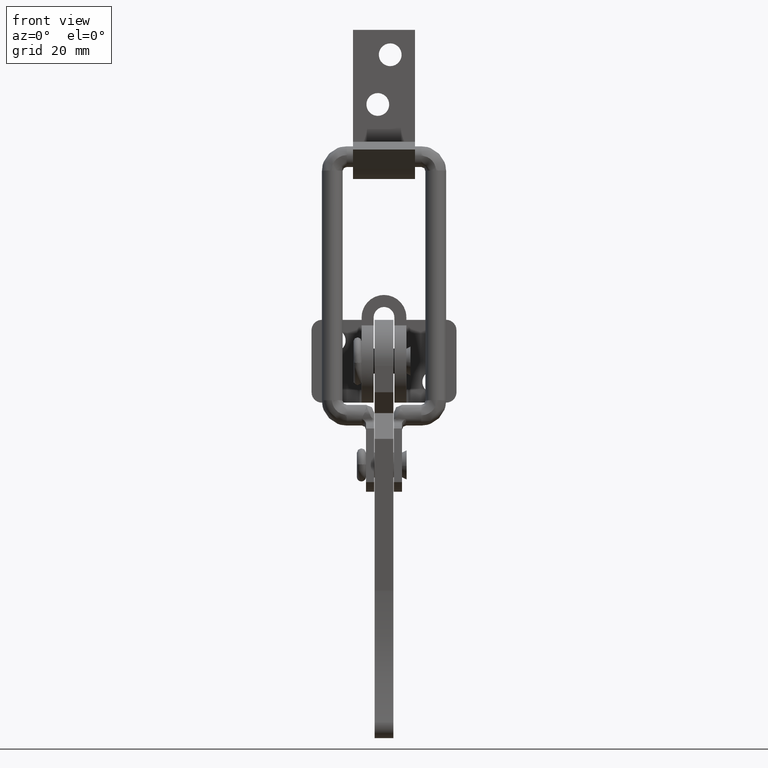
[diagram: clean part render]
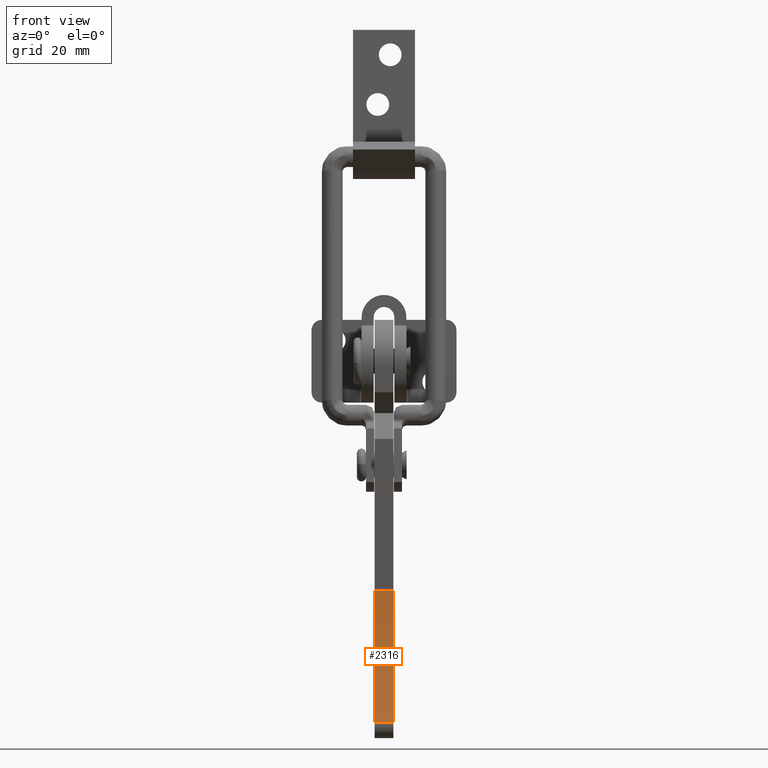
[diagram: same view with one face highlighted and labeled with its STEP entity id]
A machine part, front view. The second image highlights one B-rep face of the part: STEP entity #2316.
In plain terms, the highlighted face is a freeform B-spline surface patch.
Its self-contained STEP definition (entity closure, byte-faithful):
#1693=CARTESIAN_POINT('',(-2.249999999999975,-7.477254830264430,-87.209947960264699));
#1694=VERTEX_POINT('',#1693);
#1695=CARTESIAN_POINT('',(-2.249999999999975,-4.079169385977215,-55.395696729179903));
#1696=VERTEX_POINT('',#1695);
#1697=CARTESIAN_POINT('',(-2.249999999999975,-7.477254830264554,-87.209947960264699));
#1698=CARTESIAN_POINT('',(-2.249999999999974,-3.200251024974773,-71.578174795073835));
#1699=CARTESIAN_POINT('',(-2.249999999999975,-4.079169385977272,-55.395696729179932));
#1707=(BOUNDED_CURVE()B_SPLINE_CURVE(2,(#1697,#1698,#1699),.UNSPECIFIED.,.F.,.U.)CURVE()GEOMETRIC_REPRESENTATION_ITEM()QUASI_UNIFORM_CURVE()RATIONAL_B_SPLINE_CURVE((1.0,0.987120894747938,1.0))REPRESENTATION_ITEM(''));
#1708=EDGE_CURVE('',#1694,#1696,#1707,.T.);
#1868=CARTESIAN_POINT('',(2.249999999999975,-7.477254830264430,-87.209947960264699));
#1869=VERTEX_POINT('',#1868);
#1870=CARTESIAN_POINT('',(2.249999999999975,-4.079169385977215,-55.395696729179903));
#1871=VERTEX_POINT('',#1870);
#1872=CARTESIAN_POINT('',(2.249999999999975,-7.477254830264554,-87.209947960264699));
#1873=CARTESIAN_POINT('',(2.249999999999974,-3.200251024974773,-71.578174795073835));
#1874=CARTESIAN_POINT('',(2.249999999999975,-4.079169385977272,-55.395696729179932));
#1882=(BOUNDED_CURVE()B_SPLINE_CURVE(2,(#1872,#1873,#1874),.UNSPECIFIED.,.F.,.U.)CURVE()GEOMETRIC_REPRESENTATION_ITEM()QUASI_UNIFORM_CURVE()RATIONAL_B_SPLINE_CURVE((1.0,0.987120894747938,1.0))REPRESENTATION_ITEM(''));
#1883=EDGE_CURVE('',#1869,#1871,#1882,.T.);
#2063=CARTESIAN_POINT('',(2.249999999999975,-7.477254830264430,-87.209947960264699));
#2064=CARTESIAN_POINT('',(-2.249999999999975,-7.477254830264430,-87.209947960264699));
#2065=QUASI_UNIFORM_CURVE('',1,(#2063,#2064),.UNSPECIFIED.,.F.,.U.);
#2066=EDGE_CURVE('',#1869,#1694,#2065,.T.);
#2286=CARTESIAN_POINT('',(2.249999999999975,-4.079169385977215,-55.395696729179903));
#2287=CARTESIAN_POINT('',(-2.249999999999975,-4.079169385977215,-55.395696729179903));
#2288=QUASI_UNIFORM_CURVE('',1,(#2286,#2287),.UNSPECIFIED.,.F.,.U.);
#2289=EDGE_CURVE('',#1871,#1696,#2288,.T.);
#2296=CARTESIAN_POINT('',(2.362499999999973,-7.910504996385069,-88.745197329223785));
#2297=CARTESIAN_POINT('',(-2.365312290191677,-7.910504996385069,-88.745197329223785));
#2298=CARTESIAN_POINT('',(2.362499999999973,-2.925743954387200,-71.605584590487922));
#2299=CARTESIAN_POINT('',(-2.365312290191677,-2.925743954387200,-71.605584590487922));
#2300=CARTESIAN_POINT('',(2.362499999999974,-4.178646935458487,-53.799843898237100));
#2301=CARTESIAN_POINT('',(-2.365312290191676,-4.178646935458487,-53.799843898237100));
#2309=(BOUNDED_SURFACE()B_SPLINE_SURFACE(1,2,((#2296,#2298,#2300),(#2297,#2299,#2301)),.UNSPECIFIED.,.F.,.F.,.U.)B_SPLINE_SURFACE_WITH_KNOTS((2,2),(3,3),(0.0,4.727812290191650),(1.032614063358307,36.453941036129002),.UNSPECIFIED.)GEOMETRIC_REPRESENTATION_ITEM()RATIONAL_B_SPLINE_SURFACE(((0.998997039054250,0.982247582515760,0.996550037602893),(0.998997039054250,0.982247582515760,0.996550037602893)))REPRESENTATION_ITEM('')SURFACE());
#2310=ORIENTED_EDGE('',*,*,#1708,.F.);
#2311=ORIENTED_EDGE('',*,*,#2066,.F.);
#2312=ORIENTED_EDGE('',*,*,#1883,.T.);
#2313=ORIENTED_EDGE('',*,*,#2289,.T.);
#2314=EDGE_LOOP('',(#2310,#2311,#2312,#2313));
#2315=FACE_OUTER_BOUND('',#2314,.T.);
#2316=ADVANCED_FACE('',(#2315),#2309,.F.);